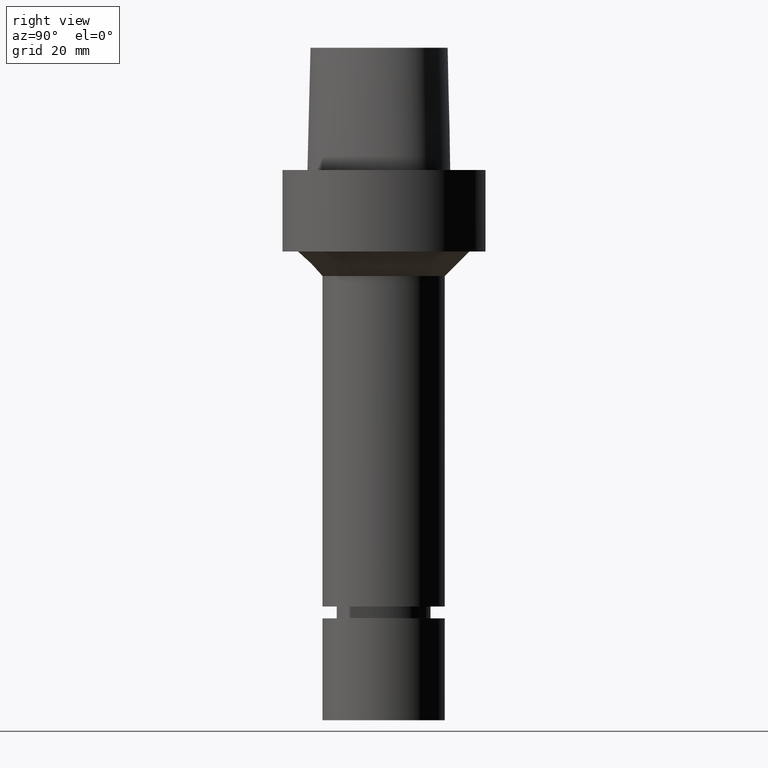
[diagram: clean part render]
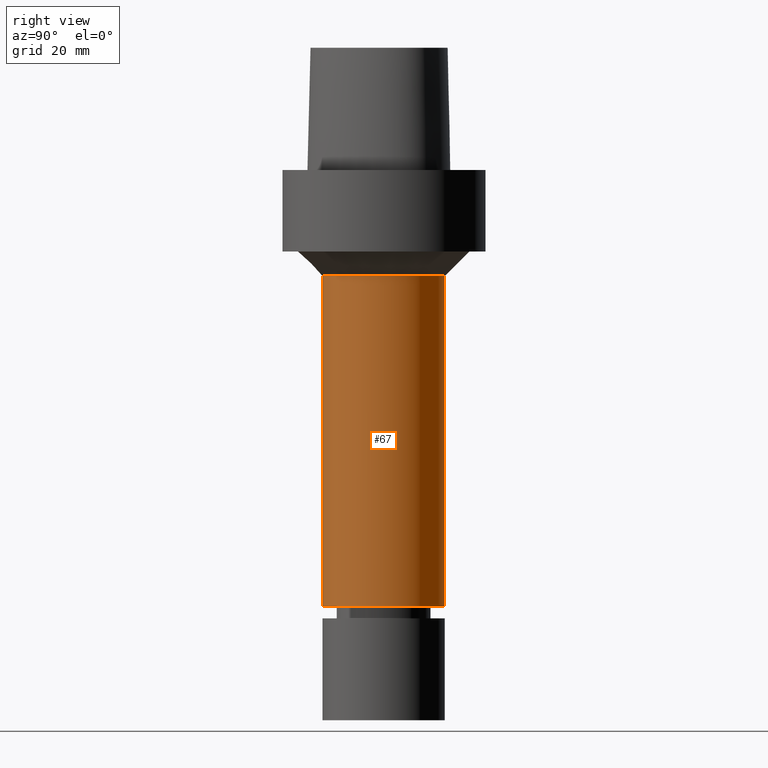
[diagram: same view with one face highlighted and labeled with its STEP entity id]
A machine part, right view. The second image highlights one B-rep face of the part: STEP entity #67.
In plain terms, the highlighted cylindrical surface (bore or boss wall) has radius 15 mm, axis along (0, 0, -1).
Its self-contained STEP definition (entity closure, byte-faithful):
#67=ADVANCED_FACE('Unnamed[1]',(#170,#171),#172,.T.);
#78=EDGE_CURVE('Unnamed[1]',#187,#187,#188,.T.);
#96=EDGE_CURVE('Unnamed[1]',#214,#214,#215,.T.);
#170=FACE_BOUND('',#307,.T.);
#171=FACE_BOUND('',#308,.T.);
#172=CYLINDRICAL_SURFACE('',#309,15.0000000000003);
#187=VERTEX_POINT('',#327);
#188=CIRCLE('',#328,15.0000000000003);
#214=VERTEX_POINT('',#888);
#215=CIRCLE('',#889,15.0000000000003);
#307=EDGE_LOOP('',(#991));
#308=EDGE_LOOP('',(#992));
#309=AXIS2_PLACEMENT_3D('',#993,#994,#995);
#327=CARTESIAN_POINT('',(6.55798360943403E-015,15.0000000000003,-107.099999999999));
#328=AXIS2_PLACEMENT_3D('',#1009,#1010,#1011);
#888=CARTESIAN_POINT('',(1.59204083889156E-015,15.0000000000003,-26.0));
#889=AXIS2_PLACEMENT_3D('',#1032,#1033,#1034);
#991=ORIENTED_EDGE('',*,*,#78,.F.);
#992=ORIENTED_EDGE('',*,*,#96,.T.);
#993=CARTESIAN_POINT('',(4.0750122241628E-015,8.15002444832559E-015,-66.5499999999997));
#994=DIRECTION('',(6.12323399573677E-017,1.22464679914735E-016,-1.0));
#995=DIRECTION('',(-1.23259516440783E-032,1.0,1.22464679914735E-016));
#1009=CARTESIAN_POINT('',(6.55798360943403E-015,1.31159672188681E-014,-107.099999999999));
#1010=DIRECTION('',(6.12323399573677E-017,1.22464679914735E-016,-1.0));
#1011=DIRECTION('',(-1.23259516440783E-032,1.0,1.22464679914735E-016));
#1032=CARTESIAN_POINT('',(1.59204083889156E-015,3.18408167778312E-015,-26.0));
#1033=DIRECTION('',(6.12323399573677E-017,1.22464679914735E-016,-1.0));
#1034=DIRECTION('',(-1.23259516440783E-032,1.0,1.22464679914735E-016));